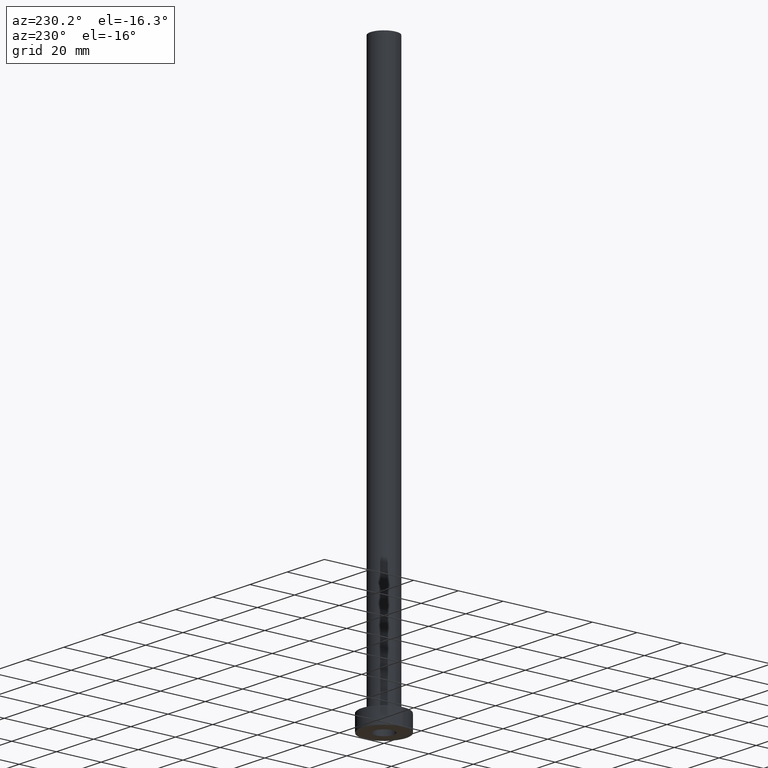
[diagram: clean part render]
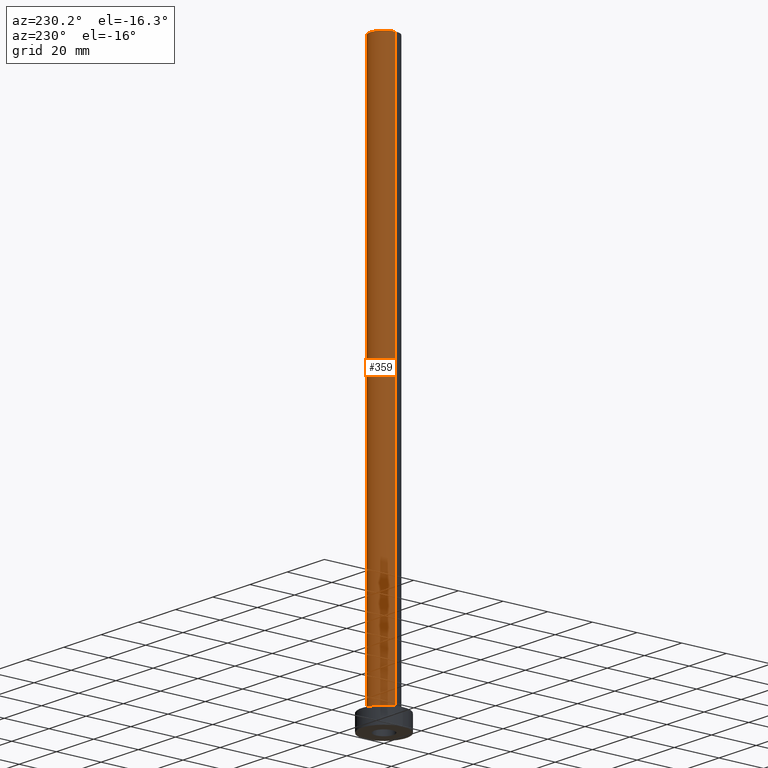
[diagram: same view with one face highlighted and labeled with its STEP entity id]
A machine part, auxiliary view. The second image highlights one B-rep face of the part: STEP entity #359.
In plain terms, the highlighted cylindrical surface (edge-blend (fillet) strip) has radius 6 mm, axis along (-0, -0, -1).
Its self-contained STEP definition (entity closure, byte-faithful):
#30 = CARTESIAN_POINT ( 'NONE',  ( -6.000000000000000888, 0.000000000000000000, 250.0000000000000000 ) ) ;
#52 = VERTEX_POINT ( 'NONE', #96 ) ;
#65 = DIRECTION ( 'NONE',  ( 0.000000000000000000, 0.000000000000000000, 1.000000000000000000 ) ) ;
#67 = DIRECTION ( 'NONE',  ( 0.000000000000000000, 0.000000000000000000, 1.000000000000000000 ) ) ;
#69 = DIRECTION ( 'NONE',  ( 1.000000000000000000, 0.000000000000000000, 0.000000000000000000 ) ) ;
#79 = AXIS2_PLACEMENT_3D ( 'NONE', #252, #249, #293 ) ;
#87 = EDGE_CURVE ( 'NONE', #410, #342, #311, .T. ) ;
#94 = ORIENTED_EDGE ( 'NONE', *, *, #417, .F. ) ;
#95 = VECTOR ( 'NONE', #111, 1000.000000000000000 ) ;
#96 = CARTESIAN_POINT ( 'NONE',  ( -6.000000000000000888, 0.000000000000000000, 7.700000000000012612 ) ) ;
#103 = FACE_OUTER_BOUND ( 'NONE', #165, .T. ) ;
#105 = AXIS2_PLACEMENT_3D ( 'NONE', #106, #67, #69 ) ;
#106 = CARTESIAN_POINT ( 'NONE',  ( 0.000000000000000000, 0.000000000000000000, 7.700000000000012612 ) ) ;
#111 = DIRECTION ( 'NONE',  ( -0.000000000000000000, -0.000000000000000000, -1.000000000000000000 ) ) ;
#121 = ORIENTED_EDGE ( 'NONE', *, *, #87, .T. ) ;
#133 = ORIENTED_EDGE ( 'NONE', *, *, #294, .T. ) ;
#157 = CIRCLE ( 'NONE', #411, 6.000000000000000888 ) ;
#165 = EDGE_LOOP ( 'NONE', ( #244, #121, #133, #94 ) ) ;
#175 = CARTESIAN_POINT ( 'NONE',  ( 0.000000000000000000, 0.000000000000000000, 250.0000000000000000 ) ) ;
#209 = DIRECTION ( 'NONE',  ( -0.000000000000000000, -0.000000000000000000, -1.000000000000000000 ) ) ;
#213 = VECTOR ( 'NONE', #209, 1000.000000000000000 ) ;
#244 = ORIENTED_EDGE ( 'NONE', *, *, #425, .F. ) ;
#249 = DIRECTION ( 'NONE',  ( -0.000000000000000000, -0.000000000000000000, -1.000000000000000000 ) ) ;
#252 = CARTESIAN_POINT ( 'NONE',  ( 0.000000000000000000, 0.000000000000000000, 250.0000000000000000 ) ) ;
#258 = CARTESIAN_POINT ( 'NONE',  ( 6.000000000000000888, 7.347880794884120722E-16, 250.0000000000000000 ) ) ;
#264 = CARTESIAN_POINT ( 'NONE',  ( -6.000000000000000888, 0.000000000000000000, 250.0000000000000000 ) ) ;
#287 = CARTESIAN_POINT ( 'NONE',  ( 6.000000000000000888, 7.347880794884120722E-16, 250.0000000000000000 ) ) ;
#293 = DIRECTION ( 'NONE',  ( -1.000000000000000000, 0.000000000000000000, 0.000000000000000000 ) ) ;
#294 = EDGE_CURVE ( 'NONE', #342, #52, #314, .T. ) ;
#311 = LINE ( 'NONE', #287, #213 ) ;
#314 = CIRCLE ( 'NONE', #105, 6.000000000000000888 ) ;
#318 = DIRECTION ( 'NONE',  ( 1.000000000000000000, 0.000000000000000000, 0.000000000000000000 ) ) ;
#342 = VERTEX_POINT ( 'NONE', #369 ) ;
#354 = LINE ( 'NONE', #30, #95 ) ;
#359 = ADVANCED_FACE ( 'NONE', ( #103 ), #421, .T. ) ;
#369 = CARTESIAN_POINT ( 'NONE',  ( 6.000000000000000888, 7.347880794884120722E-16, 7.700000000000012612 ) ) ;
#410 = VERTEX_POINT ( 'NONE', #258 ) ;
#411 = AXIS2_PLACEMENT_3D ( 'NONE', #175, #65, #318 ) ;
#417 = EDGE_CURVE ( 'NONE', #447, #52, #354, .T. ) ;
#421 = CYLINDRICAL_SURFACE ( 'NONE', #79, 6.000000000000000888 ) ;
#425 = EDGE_CURVE ( 'NONE', #410, #447, #157, .T. ) ;
#447 = VERTEX_POINT ( 'NONE', #264 ) ;